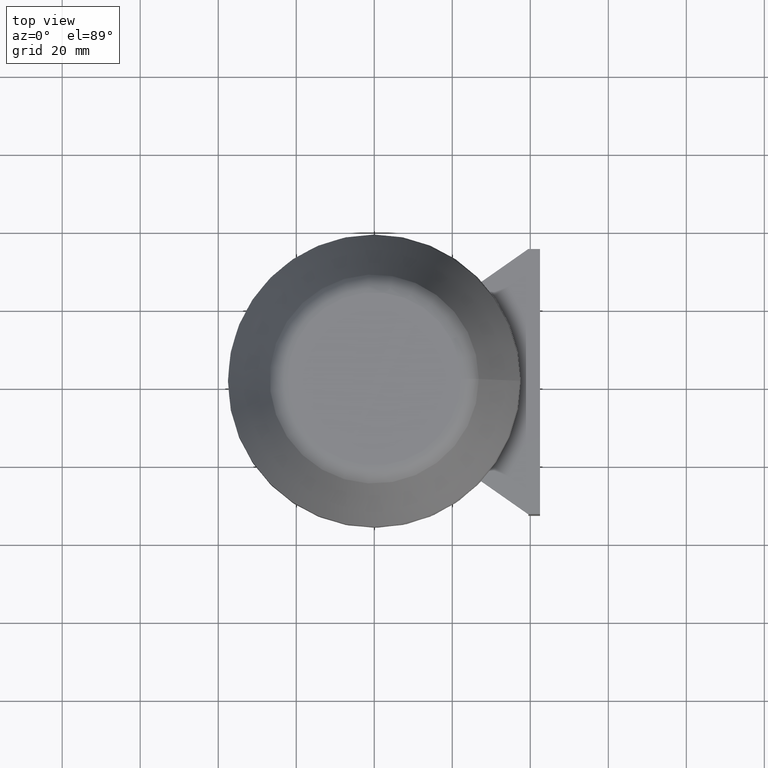
[diagram: clean part render]
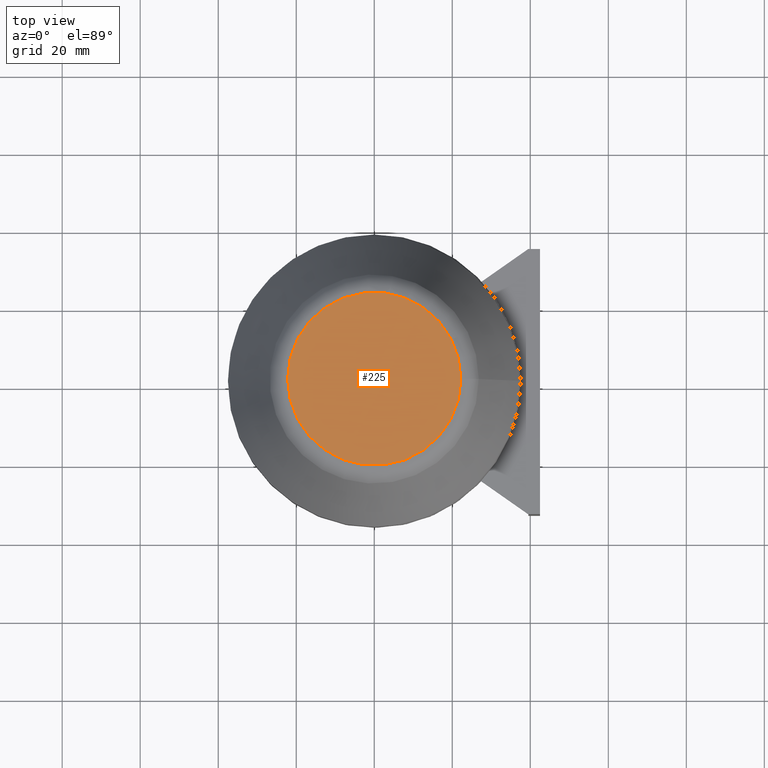
[diagram: same view with one face highlighted and labeled with its STEP entity id]
A machine part, top view. The second image highlights one B-rep face of the part: STEP entity #225.
In plain terms, the highlighted planar face has unit normal (0, 0, 1).
Its self-contained STEP definition (entity closure, byte-faithful):
#151=FACE_OUTER_BOUND('',#366,.T.);
#190=PLANE('',#914);
#225=ADVANCED_FACE('',(#151),#190,.T.);
#366=EDGE_LOOP('',(#457));
#457=ORIENTED_EDGE('',*,*,#754,.T.);
#671=VERTEX_POINT('',#1283);
#754=EDGE_CURVE('',#671,#671,#864,.T.);
#864=CIRCLE('',#912,22.1945406146432);
#912=AXIS2_PLACEMENT_3D('',#1282,#1029,#1030);
#914=AXIS2_PLACEMENT_3D('',#1285,#1033,#1034);
#1029=DIRECTION('',(0.,0.,1.));
#1030=DIRECTION('',(1.,0.,0.));
#1033=DIRECTION('',(0.,0.,1.));
#1034=DIRECTION('',(1.,0.,0.));
#1282=CARTESIAN_POINT('',(0.,0.,67.0960811447607));
#1283=CARTESIAN_POINT('',(22.1945406146432,0.,67.0960811447607));
#1285=CARTESIAN_POINT('',(1.4210854715202E-014,0.,67.0960811447607));